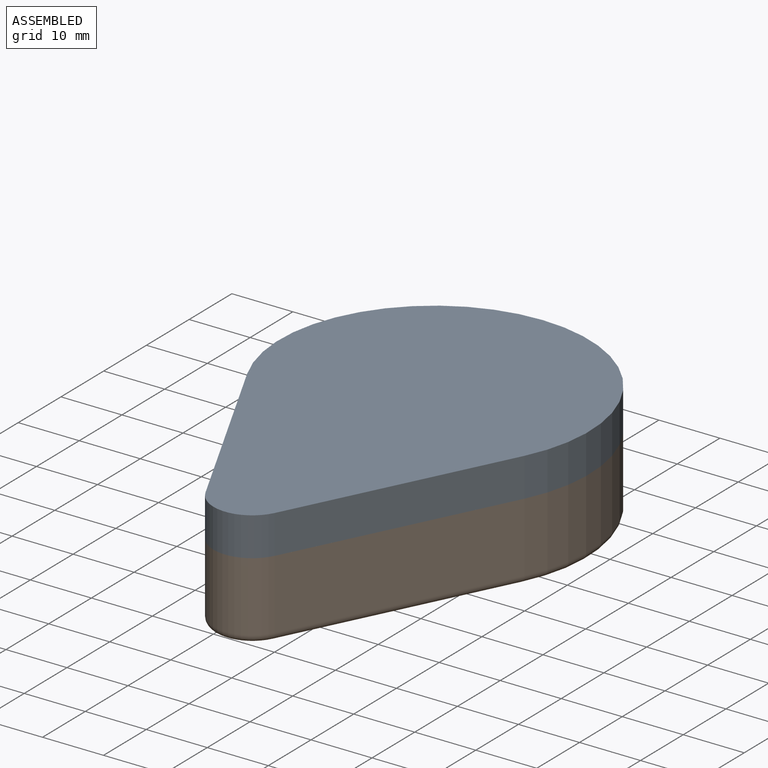
[diagram: assembled view]
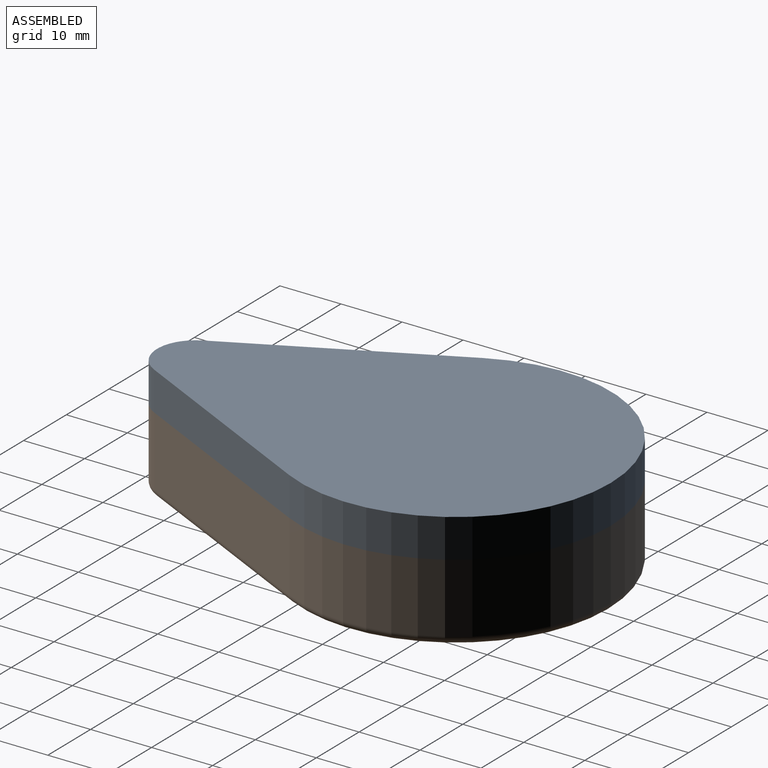
[diagram: assembled view, second angle]
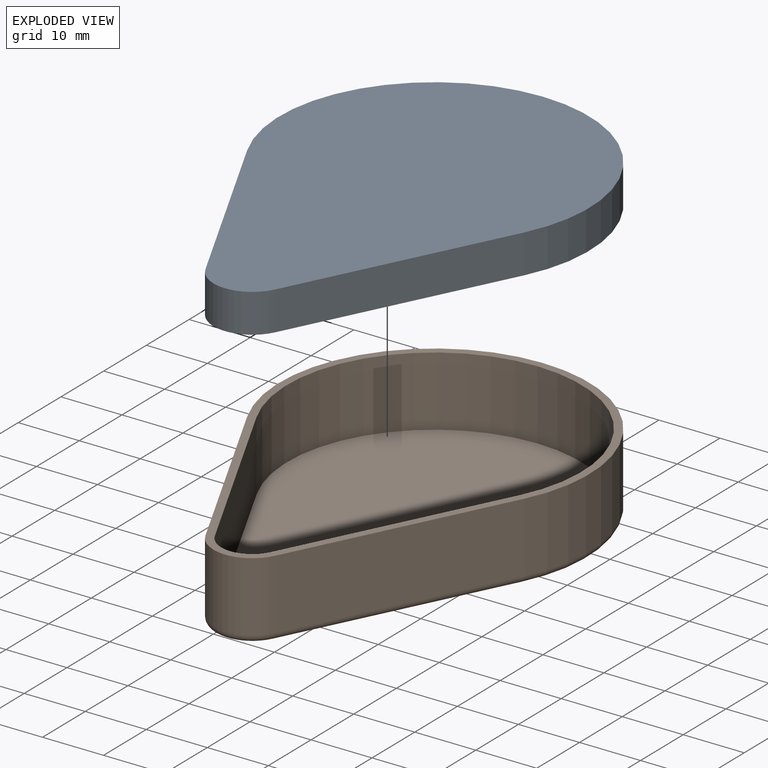
[diagram: exploded view]
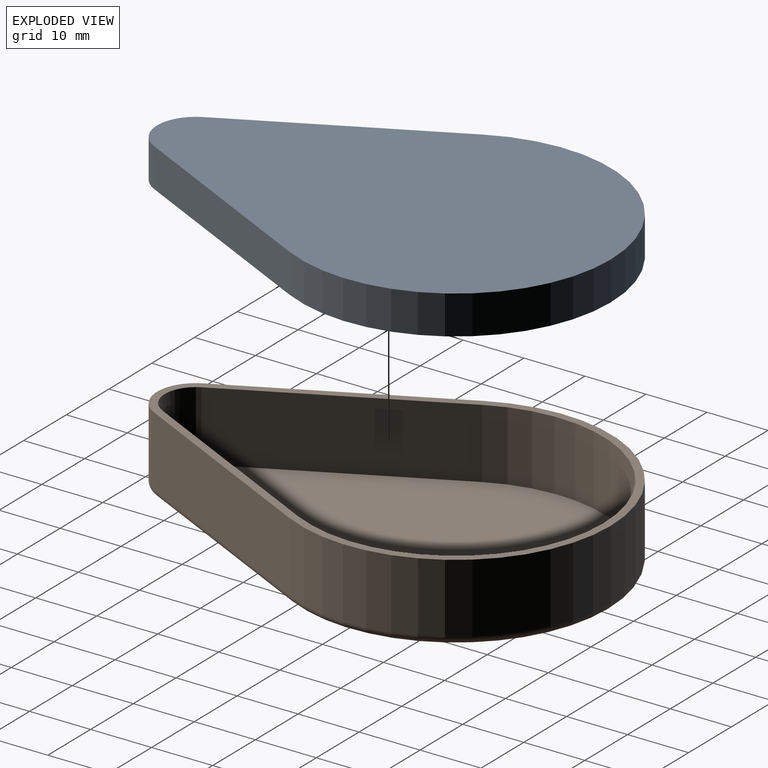
[diagram: exploded view, second angle]
ASSEMBLY  parts=2 mates=2
PART A: 11 faces, bbox 50.8x74.3x6.4 mm
  f0: plane 34.08x17.04mm, normal (-0.89,-0.45,0), area 241.9mm2, adj f1,f3,f4,f5
  f1: cylinder r=6.35mm len=11.36mm, axis (0,0,1), area 89.3mm2, adj f0,f2,f4,f5
  f2: plane 34.08x17.04mm, normal (0.89,-0.45,0), area 241.9mm2, adj f1,f3,f4,f5
  f3: cylinder r=25.4mm len=50.8mm, axis (0,0,1), area 656.3mm2, adj f0,f2,f4,f5
  f4: plane 74.35x50.8mm, normal (0,0,-1), area 121.7mm2, adj f0,f1,f2,f3,f6,f7,f8,f9
  f5: plane 74.35x50.8mm, normal (0,0,1), area 2566.9mm2, adj f0,f1,f2,f3
  f6: plane 34.08x17.04mm, normal (0.89,0.45,0), area 217.7mm2, adj f4,f7,f9,f10
  f7: cylinder r=5.71mm len=10.22mm, axis (0,0,1), area 72.3mm2, adj f4,f6,f8,f10
  f8: plane 34.08x17.04mm, normal (-0.89,0.45,0), area 217.7mm2, adj f4,f7,f9,f10
  f9: cylinder r=24.77mm len=49.53mm, axis (0,0,1), area 575.9mm2, adj f4,f6,f8,f10
  f10: plane 73.08x49.53mm, normal (0,0,-1), area 2445.2mm2, adj f6,f7,f8,f9
PART B: 15 faces, bbox 55x77x12.7 mm
  f0: plane 74.35x50.8mm, normal (0,0,1), area 240.8mm2, adj f1,f2,f3,f4,f6,f7,f8,f9
  f1: plane 34.08x17.04mm, normal (0.89,-0.45,0), area 435.5mm2, adj f0,f2,f4,f11
  f2: cylinder r=25.4mm len=50.8mm, axis (0,0,-1), area 1181.3mm2, adj f0,f1,f3,f13
  f3: plane 34.08x17.04mm, normal (-0.89,-0.45,0), area 435.5mm2, adj f0,f2,f4,f14
  f4: cylinder r=6.35mm len=11.43mm, axis (0,0,-1), area 160.7mm2, adj f0,f1,f3,f12
  f5: plane 71.81x48.26mm, normal (0,0,-1), area 2326mm2, adj f11,f12,f13,f14
  f6: plane 34.08x17.04mm, normal (-0.89,0.45,0), area 435.5mm2, adj f0,f7,f9,f10
  f7: cylinder r=24.13mm len=48.26mm, axis (0,0,-1), area 1122.2mm2, adj f0,f6,f8,f10
  f8: plane 34.08x17.04mm, normal (0.89,0.45,0), area 435.5mm2, adj f0,f7,f9,f10
  f9: cylinder r=5.08mm len=11.43mm, axis (0,0,-1), area 128.6mm2, adj f0,f6,f8,f10
  f10: plane 71.81x48.26mm, normal (0,0,1), area 2326mm2, adj f6,f7,f8,f9
  f11: cylinder r=1.27mm len=34.65mm, axis (0.45,0.89,0), area 76mm2, adj f1,f5,f12,f13
  f12: torus R=5.08mm, axis (0,0,1), area 26mm2, adj f4,f5,f11,f14
  f13: torus R=24.13mm, axis (0,0,1), area 202.4mm2, adj f2,f5,f11,f14
  f14: cylinder r=1.27mm len=34.65mm, axis (0.45,-0.89,0), area 76mm2, adj f3,f5,f12,f13
PLACE A t=(-0.2,-3.65,9.04)mm
PLACE B t=(-0.2,-3.65,-10.01)mm
MATE cylindrical B.f2 <-> A.f3  axis (0,0,-1) through (-0.2,7.71,-3.03)mm
MATE planar B.f2 <-> A.f4  axis (0,0,1) through (-0.2,7.71,2.69)mm
